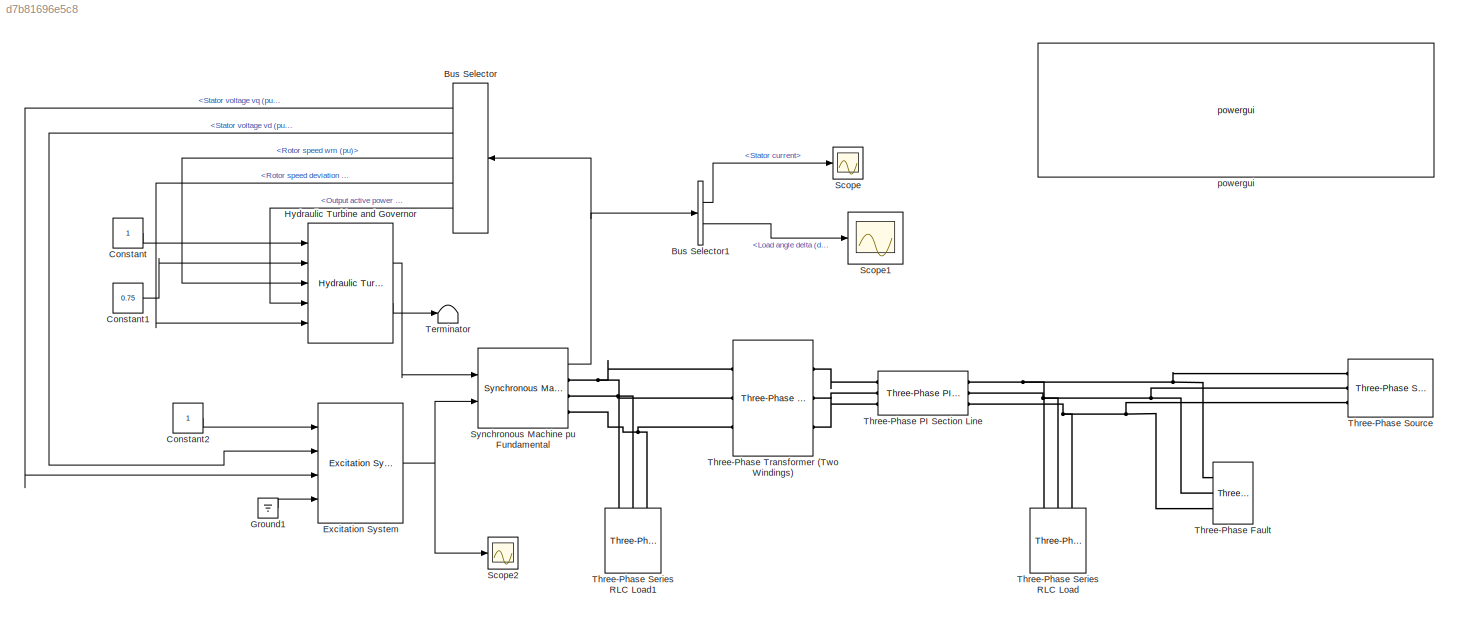
MODEL slx_d7b81696e5c8
KIND model
CONFIG AbsTol = auto
CONFIG FixedStep = auto
CONFIG MaxStep = auto
CONFIG MinStep = auto
CONFIG RelTol = 1e-3
CONFIG SampleTimeConstraint = Unconstrained
CONFIG Solver = VariableStepAuto
CONFIG SolverMode = Auto
CONFIG SolverName = VariableStepAuto
CONFIG StartTime = 0.0
CONFIG StopTime = 30.0
BLOCK [BusSelector] Bus Selector
  OutputSignals = dq0 components.Stator voltage  vq (pu),dq0 components.Stator voltage  vd (pu),Mechanical.Rotor speed  wm (pu),Mechanical.Rotor speed deviation  dw (pu),Output active power   Peo (pu)
  Ports = [1, 5]
BLOCK [BusSelector] Bus Selector1
  OutputSignals = Stator current,Load angle   delta  (deg)
  Ports = [1, 2]
BLOCK [Constant] Constant
BLOCK [Constant] Constant1
  Value = 0.75
BLOCK [Constant] Constant2
BLOCK [Reference] Excitation System  REF=sps_avr/Excitation System
  Ports = [4, 1]
  SourceBlock = sps_avr/Excitation System
  SourceType = Excitation System
BLOCK [Ground] Ground1
BLOCK [Reference] Hydraulic Turbine and Governor  REF=powerlib/Machines/Hydraulic Turbine
and Governor
  Ports = [5, 2]
  SourceBlock = powerlib/Machines/Hydraulic Turbine\nand Governor
  SourceType = Hydraulic Turbine and Governor
BLOCK [Scope] Scope
  Ports = [1]
  ScopeSpecificationString = Simulink.scopes.TimeScopeBlockCfg('CurrentConfiguration', extmgr.ConfigurationSet(extmgr.Configuration('Core','General UI',true),extmgr.Configuration('Core','Source UI',true),extmgr.Configuration('Sources','WiredSimulink',true,'DataLoggingSaveFormat','Array','DataLoggingDecimation','1','DataLoggingDecimateData',true),extmgr.Configuration('Visuals','Time Domain',true,'SerializedDisplays',{struct('M...<+1540ch>
BLOCK [Scope] Scope1
  Ports = [1]
  ScopeSpecificationString = Simulink.scopes.TimeScopeBlockCfg('CurrentConfiguration', extmgr.ConfigurationSet(extmgr.Configuration('Core','General UI',true),extmgr.Configuration('Core','Source UI',true),extmgr.Configuration('Sources','WiredSimulink',true,'DataLoggingVariableName','ScopeData1','DataLoggingSaveFormat','Array','DataLoggingDecimation','1','DataLoggingDecimateData',true),extmgr.Configuration('Visuals','Time Domai...<+1589ch>
BLOCK [Scope] Scope2
  Ports = [1]
  ScopeSpecificationString = Simulink.scopes.TimeScopeBlockCfg('CurrentConfiguration', extmgr.ConfigurationSet(extmgr.Configuration('Core','General UI',true),extmgr.Configuration('Core','Source UI',true),extmgr.Configuration('Sources','WiredSimulink',true,'DataLoggingVariableName','ScopeData1','DataLoggingSaveFormat','Array','DataLoggingDecimation','1','DataLoggingDecimateData',true),extmgr.Configuration('Visuals','Time Domai...<+1567ch>
BLOCK [Reference] Synchronous Machine pu Fundamental  REF=powerlib/Machines/Synchronous Machine
pu Fundamental
  Ports = [2, 1, 0, 0, 0, 0, 3]
  SourceBlock = powerlib/Machines/Synchronous Machine\npu Fundamental
  SourceType = Synchronous Machine
BLOCK [Terminator] Terminator
BLOCK [Reference] Three-Phase Fault  REF=powerlib/Elements/Three-Phase Fault
  Ports = [0, 0, 0, 0, 0, 3]
  SourceBlock = powerlib/Elements/Three-Phase Fault
  SourceType = Three-Phase Fault
BLOCK [Reference] Three-Phase PI Section Line  REF=powerlib/Elements/Three-Phase
PI Section Line
  AttributesFormatString = \n
  Ports = [0, 0, 0, 0, 0, 3, 3]
  SourceBlock = powerlib/Elements/Three-Phase\nPI Section Line
  SourceType = Three-Phase PI Section Line
BLOCK [Reference] Three-Phase Series RLC Load  REF=powerlib/Elements/Three-Phase
Series RLC Load
  AttributesFormatString = \n
  Ports = [0, 0, 0, 0, 0, 3]
  SourceBlock = powerlib/Elements/Three-Phase\nSeries RLC Load
  SourceType = Three-Phase Series RLC Load
BLOCK [Reference] Three-Phase Series RLC Load1  REF=powerlib/Elements/Three-Phase
Series RLC Load
  AttributesFormatString = \n
  Ports = [0, 0, 0, 0, 0, 3]
  SourceBlock = powerlib/Elements/Three-Phase\nSeries RLC Load
  SourceType = Three-Phase Series RLC Load
BLOCK [Reference] Three-Phase Source  REF=powerlib/Electrical
Sources/Three-Phase Source
  Ports = [0, 0, 0, 0, 0, 0, 3]
  SourceBlock = powerlib/Electrical\nSources/Three-Phase Source
  SourceType = Three-Phase Source
BLOCK [Reference] Three-Phase Transformer (Two Windings)  REF=powerlib/Elements/Three-Phase
Transformer
(Two Windings)
  Ports = [0, 0, 0, 0, 0, 3, 3]
  SourceBlock = powerlib/Elements/Three-Phase\nTransformer\n(Two Windings)
  SourceType = Three-Phase Transformer (Two Windings)
BLOCK [Reference] powergui  REF=powerlib/powergui
  Ports = []
  Priority = 1
  SourceBlock = powerlib/powergui
  SourceType = PSB option menu block
  UserDataPersistent = on
LINE Bus Selector1:1 -> Scope:1
LINE Bus Selector1:2 -> Scope1:1
LINE Bus Selector:1 -> Excitation System:3
LINE Bus Selector:2 -> Excitation System:2
LINE Bus Selector:3 -> Hydraulic Turbine and Governor:3
LINE Bus Selector:4 -> Hydraulic Turbine and Governor:5
LINE Bus Selector:5 -> Hydraulic Turbine and Governor:4
LINE Constant1:1 -> Hydraulic Turbine and Governor:2
LINE Constant2:1 -> Excitation System:1
LINE Constant:1 -> Hydraulic Turbine and Governor:1
NET Excitation System:1 -> Scope2:1, Synchronous Machine pu Fundamental:2
LINE Ground1:1 -> Excitation System:4
LINE Hydraulic Turbine and Governor:1 -> Synchronous Machine pu Fundamental:1
LINE Hydraulic Turbine and Governor:2 -> Terminator:1
NET Synchronous Machine pu Fundamental:1 -> Bus Selector1:1, Bus Selector:1
PNET net1: Synchronous Machine pu Fundamental:RConn1 -- Three-Phase Series RLC Load1:LConn1 -- Three-Phase Transformer (Two Windings):LConn1
PNET net2: Synchronous Machine pu Fundamental:RConn2 -- Three-Phase Series RLC Load1:LConn2 -- Three-Phase Transformer (Two Windings):LConn2
PNET net3: Synchronous Machine pu Fundamental:RConn3 -- Three-Phase Series RLC Load1:LConn3 -- Three-Phase Transformer (Two Windings):LConn3
PNET net4: Three-Phase Fault:LConn1 -- Three-Phase PI Section Line:RConn1 -- Three-Phase Series RLC Load:LConn1 -- Three-Phase Source:RConn1
PNET net5: Three-Phase Fault:LConn2 -- Three-Phase PI Section Line:RConn2 -- Three-Phase Series RLC Load:LConn2 -- Three-Phase Source:RConn2
PNET net6: Three-Phase Fault:LConn3 -- Three-Phase PI Section Line:RConn3 -- Three-Phase Series RLC Load:LConn3 -- Three-Phase Source:RConn3
PLINE Three-Phase PI Section Line:LConn1 -- Three-Phase Transformer (Two Windings):RConn1
PLINE Three-Phase PI Section Line:LConn2 -- Three-Phase Transformer (Two Windings):RConn2
PLINE Three-Phase PI Section Line:LConn3 -- Three-Phase Transformer (Two Windings):RConn3
note: NET lines group one-source signal fan-out (src -> all destinations, sorted); 1:1 wires keep LINE; PNET lines group multi-terminal physical nets as a canonical sorted terminal list (undirected conserving connections); 2-terminal nets keep the pairwise PLINE form
